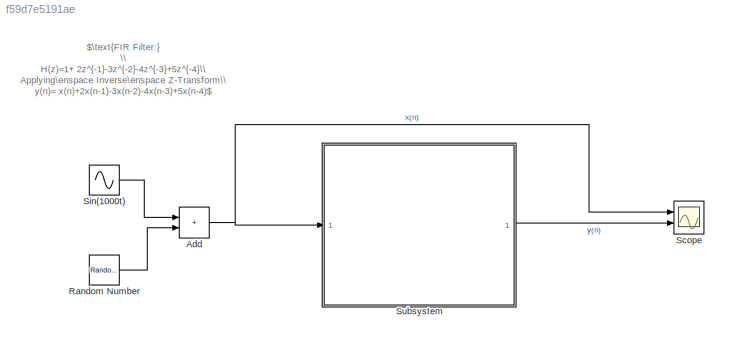
MODEL slx_f59d7e5191ae
KIND model
CONFIG AbsTol = auto
CONFIG EnableMultiTasking = off
CONFIG FixedStep = auto
CONFIG MaxStep = 0.01
CONFIG MinStep = auto
CONFIG RelTol = 1e-3
CONFIG SampleTimeConstraint = Unconstrained
CONFIG SolverName = VariableStepAuto
CONFIG StartTime = 0.0
CONFIG StopTime = 5
BLOCK [Sum] Add
  IconShape = rectangular
  Ports = [2, 1]
BLOCK [RandomNumber] Random Number
  SampleTime = 0.1
BLOCK [Scope] Scope
  Floating = off
  NumInputPorts = 2
  Ports = [2]
  ScopeSpecificationString = Simulink.scopes.TimeScopeBlockCfg('CurrentConfiguration', extmgr.ConfigurationSet(extmgr.Configuration('Core','General UI',true),extmgr.Configuration('Core','Source UI',true),extmgr.Configuration('Sources','WiredSimulink',true),extmgr.Configuration('Visuals','Time Domain',true,'SerializedDisplays',{struct('MinYLimReal','-4.057','MaxYLimReal','3.40977','YLabelReal','','MinYLimMag','0.00000','MaxYLi...<+2009ch>
BLOCK [Sin] Sin(1000t)
  Frequency = 2*pi*1000
  Ports = [0, 1]
  SampleTime = 0
BLOCK [ModelReference] Subsystem
  ModelNameDialog = Problem6_DirectForm_ReferenceModel
  ModelReferenceVersion = 1.2
  Ports = [1, 1]
ANNOTATION (root): $\text{FIR Filter:} \\ H(z)=1+ 2z^{-1}-3z^{-2}-4z^{-3}+5z^{-4}\\ Applying\enspace Inverse\enspace Z-Transform\\ y(n)= x(n)+2x(n-1)-3x(n-2)-4x(n-3)+5x(n-4)$
NET Add:1 -> Scope:1, Subsystem:1
LINE Random Number:1 -> Add:2
LINE Sin(1000t):1 -> Add:1
LINE Subsystem:1 -> Scope:2
note: NET lines group one-source signal fan-out (src -> all destinations, sorted); 1:1 wires keep LINE
